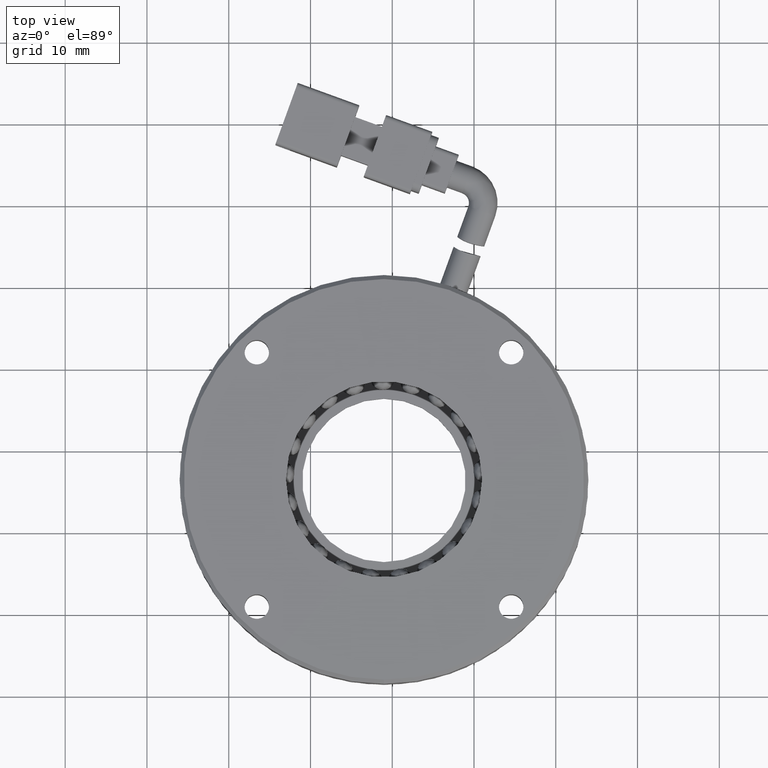
[diagram: clean part render]
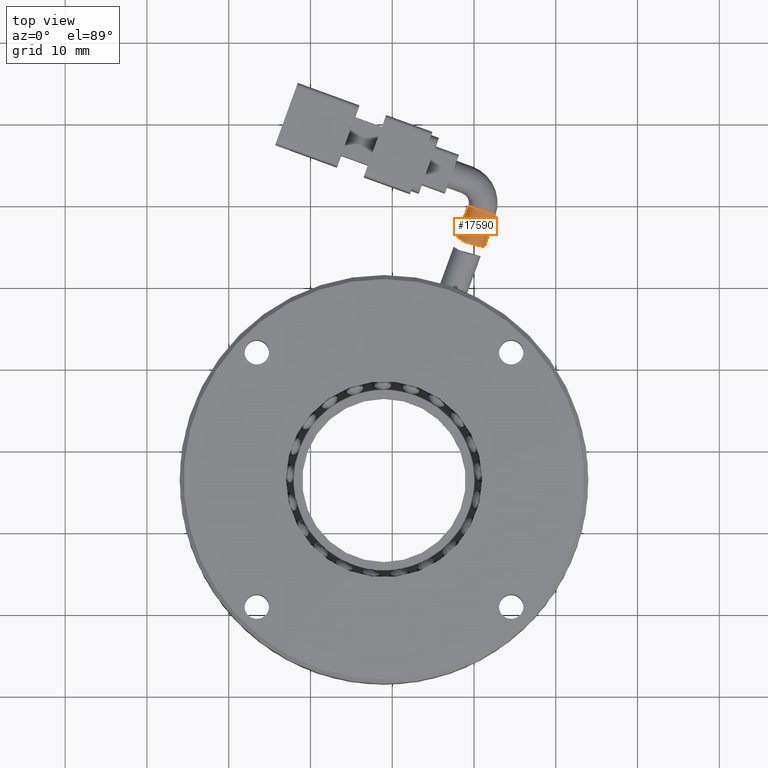
[diagram: same view with one face highlighted and labeled with its STEP entity id]
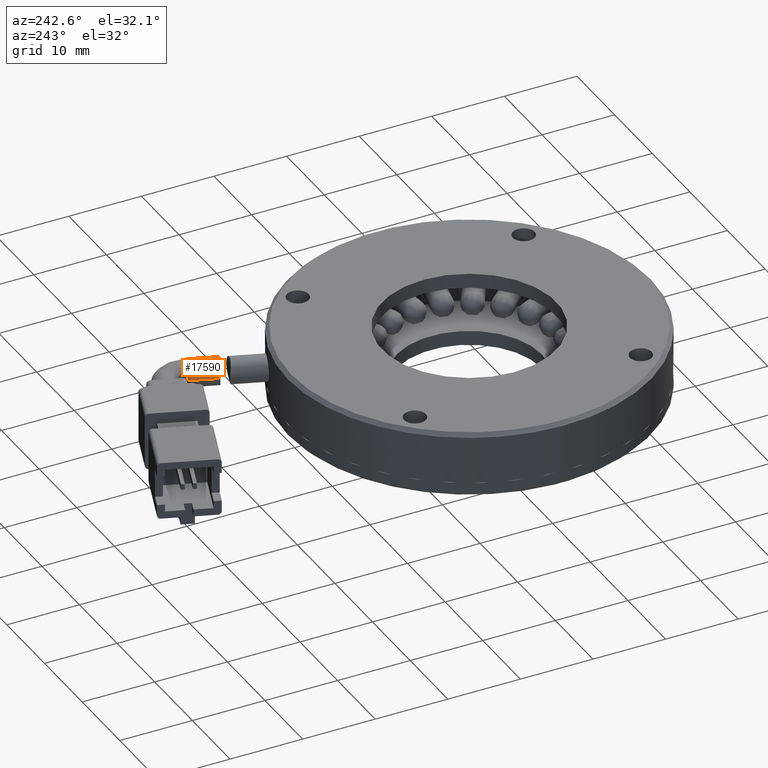
[diagram: same view with one face highlighted and labeled with its STEP entity id]
A machine part, top view. The second image highlights one B-rep face of the part: STEP entity #17590.
A second angle (auxiliary view) of the same face is appended — the face is thin or edge-on in the first view.
In plain terms, the highlighted cylindrical surface (edge-blend (fillet) strip) has radius 1.75 mm, axis along (-0.342, -0.9397, 0).
Its self-contained STEP definition (entity closure, byte-faithful):
#402 = CARTESIAN_POINT ( 'NONE',  ( -111.2983363199288900, 35.72100326831934300, 1.027948768475112700 ) ) ;
#485 = CARTESIAN_POINT ( 'NONE',  ( -108.8030794058895900, 35.01347963575544500, -0.03894123945426986000 ) ) ;
#1222 = CARTESIAN_POINT ( 'NONE',  ( -109.0484085371703300, 39.32051620641703900, -0.4999999999999378800 ) ) ;
#1261 = CARTESIAN_POINT ( 'NONE',  ( -107.4039464507949900, 38.72198095559715400, -0.4999999999999383300 ) ) ;
#2313 = ORIENTED_EDGE ( 'NONE', *, *, #3592, .T. ) ;
#2437 = CARTESIAN_POINT ( 'NONE',  ( -110.6962438958550200, 35.46775768977281000, 1.249801738279102900 ) ) ;
#2520 = CARTESIAN_POINT ( 'NONE',  ( -108.7562991124518800, 35.00642255455552000, -0.4999999999999376600 ) ) ;
#3304 = VECTOR ( 'NONE', #10433, 999.9999999999998900 ) ;
#3592 = EDGE_CURVE ( 'NONE', #11597, #17676, #14167, .T. ) ;
#4401 = CARTESIAN_POINT ( 'NONE',  ( -112.0525850066625000, 36.18326689271588500, -0.3839242989276307500 ) ) ;
#4431 = EDGE_CURVE ( 'NONE', #7659, #4969, #25780, .T. ) ;
#4478 = CARTESIAN_POINT ( 'NONE',  ( -110.2575783267733700, 35.32775057819535600, 1.238669646608382900 ) ) ;
#4481 = CIRCLE ( 'NONE', #25948, 1.749999999999996200 ) ;
#4969 = VERTEX_POINT ( 'NONE', #5118 ) ;
#5118 = CARTESIAN_POINT ( 'NONE',  ( -108.7562991124518800, 35.00642255455552000, -0.4999999999999376600 ) ) ;
#5694 = CARTESIAN_POINT ( 'NONE',  ( -112.0525850066624700, 36.18326689271587800, -0.4999999999999374400 ) ) ;
#6256 = CARTESIAN_POINT ( 'NONE',  ( -109.0484085371703000, 39.32051620641706800, -0.4999999999999375500 ) ) ;
#6463 = CARTESIAN_POINT ( 'NONE',  ( -112.0055630117261400, 36.14842806374581800, -0.04584055306201074300 ) ) ;
#6547 = CARTESIAN_POINT ( 'NONE',  ( -109.9346997545156100, 35.23983084496828900, 1.160999207495093900 ) ) ;
#7557 = CARTESIAN_POINT ( 'NONE',  ( -110.6928706235456600, 39.91905145723699600, -0.4999999999999376600 ) ) ;
#7659 = VERTEX_POINT ( 'NONE', #1261 ) ;
#8316 = DIRECTION ( 'NONE',  ( 0.9396926207859087600, -0.3420201433256679900, 0.0000000000000000000 ) ) ;
#8373 = CYLINDRICAL_SURFACE ( 'NONE', #11509, 1.749999999999996200 ) ;
#8521 = CARTESIAN_POINT ( 'NONE',  ( -111.9027008735628600, 36.07555174446368100, 0.2768042061089755500 ) ) ;
#8609 = CARTESIAN_POINT ( 'NONE',  ( -109.4328402418417700, 35.12536941067913400, 0.9009193576227670900 ) ) ;
#9941 = EDGE_LOOP ( 'NONE', ( #23315, #12149, #2313, #17146 ) ) ;
#10433 = DIRECTION ( 'NONE',  ( -0.3420201433256689900, -0.9396926207859084300, 1.529417067667756700E-016 ) ) ;
#10547 = CARTESIAN_POINT ( 'NONE',  ( -111.7478027732749100, 35.97386402975570300, 0.5667279469501725900 ) ) ;
#10636 = CARTESIAN_POINT ( 'NONE',  ( -109.1181387102023200, 35.06636863990578900, 0.5699700226460251400 ) ) ;
#10856 = CARTESIAN_POINT ( 'NONE',  ( -107.4039464507950000, 38.72198095559711800, -0.4999999999999383300 ) ) ;
#11140 = FACE_OUTER_BOUND ( 'NONE', #9941, .T. ) ;
#11509 = AXIS2_PLACEMENT_3D ( 'NONE', #1222, #17640, #17720 ) ;
#11597 = VERTEX_POINT ( 'NONE', #7557 ) ;
#12149 = ORIENTED_EDGE ( 'NONE', *, *, #16806, .F. ) ;
#12615 = CARTESIAN_POINT ( 'NONE',  ( -111.4725081947150800, 35.81164238077130300, 0.8972995782661152800 ) ) ;
#12693 = CARTESIAN_POINT ( 'NONE',  ( -108.9356524200035100, 35.03507724204779100, 0.2781273020350622500 ) ) ;
#14167 = LINE ( 'NONE', #22676, #3304 ) ;
#14587 = CARTESIAN_POINT ( 'NONE',  ( -112.0525850066624700, 36.18326689271587800, -0.4999999999999374400 ) ) ;
#14669 = CARTESIAN_POINT ( 'NONE',  ( -110.9122911317572400, 35.54994339582953700, 1.203301210016983500 ) ) ;
#14752 = CARTESIAN_POINT ( 'NONE',  ( -108.7562991124517000, 35.00642255455549200, -0.2678985178677362700 ) ) ;
#15143 = DIRECTION ( 'NONE',  ( -0.3420201433256689900, -0.9396926207859084300, 1.529417067667756700E-016 ) ) ;
#15584 = B_SPLINE_CURVE_WITH_KNOTS ( 'NONE', 3,
 ( #14587, #4401, #18687, #6463, #20729, #8521, #22783, #10547, #24803, #12615, #402, #14669, #2437, #16732, #4478, #18778, #6547, #20807, #8609, #22861, #10636, #24885, #12693, #485, #14752, #2520 ),
 .UNSPECIFIED., .F., .F.,
 ( 4, 2, 2, 2, 2, 2, 2, 2, 2, 2, 2, 2, 4 ),
 ( 0.0000000000000000000, 0.0003431112236458717300, 0.0006862224472917434700, 0.001029333670937615300, 0.001372444894583486900, 0.002058667341875204500, 0.002744889789166922300, 0.003088001012812761200, 0.003431112236458599700, 0.004117334683750278000, 0.004460445907396103100, 0.004803557131041928100, 0.005489779578333577400 ),
 .UNSPECIFIED. ) ;
#16732 = CARTESIAN_POINT ( 'NONE',  ( -110.3691059731853700, 35.36123023289668100, 1.250098155458080600 ) ) ;
#16806 = EDGE_CURVE ( 'NONE', #11597, #7659, #4481, .T. ) ;
#17146 = ORIENTED_EDGE ( 'NONE', *, *, #20497, .T. ) ;
#17590 = ADVANCED_FACE ( 'NONE', ( #11140 ), #8373, .T. ) ;
#17640 = DIRECTION ( 'NONE',  ( -0.3420201433256689300, -0.9396926207859083200, 1.529417067667756700E-016 ) ) ;
#17676 = VERTEX_POINT ( 'NONE', #5694 ) ;
#17720 = DIRECTION ( 'NONE',  ( -0.9396926207859087600, 0.3420201433256679900, 1.239088197126293500E-016 ) ) ;
#18687 = CARTESIAN_POINT ( 'NONE',  ( -112.0430441718720800, 36.17605277738737600, -0.2699215729166150600 ) ) ;
#18778 = CARTESIAN_POINT ( 'NONE',  ( -110.0408917571009500, 35.26723776280336900, 1.194035875997114400 ) ) ;
#20399 = VECTOR ( 'NONE', #15143, 999.9999999999998900 ) ;
#20497 = EDGE_CURVE ( 'NONE', #17676, #4969, #15584, .T. ) ;
#20518 = DIRECTION ( 'NONE',  ( 0.3420201433256692700, 0.9396926207859082100, -2.706285357870903100E-018 ) ) ;
#20729 = CARTESIAN_POINT ( 'NONE',  ( -111.9771363158135200, 36.12767873431813100, 0.06542093847047048000 ) ) ;
#20807 = CARTESIAN_POINT ( 'NONE',  ( -109.6231579063855700, 35.16450575427082700, 1.029224347286801200 ) ) ;
#22676 = CARTESIAN_POINT ( 'NONE',  ( -110.6928706235456700, 39.91905145723695400, -0.4999999999999376600 ) ) ;
#22783 = CARTESIAN_POINT ( 'NONE',  ( -111.8569711041667200, 36.04437135703378900, 0.3770002913184914400 ) ) ;
#22861 = CARTESIAN_POINT ( 'NONE',  ( -109.1903252954620000, 35.07931925363989500, 0.6578432394253072000 ) ) ;
#23315 = ORIENTED_EDGE ( 'NONE', *, *, #4431, .F. ) ;
#24803 = CARTESIAN_POINT ( 'NONE',  ( -111.6840531702566600, 35.93441011928234700, 0.6561790255842923100 ) ) ;
#24885 = CARTESIAN_POINT ( 'NONE',  ( -108.9909913902694700, 35.04427366064058400, 0.3807206976144014200 ) ) ;
#25780 = LINE ( 'NONE', #10856, #20399 ) ;
#25948 = AXIS2_PLACEMENT_3D ( 'NONE', #6256, #20518, #8316 ) ;